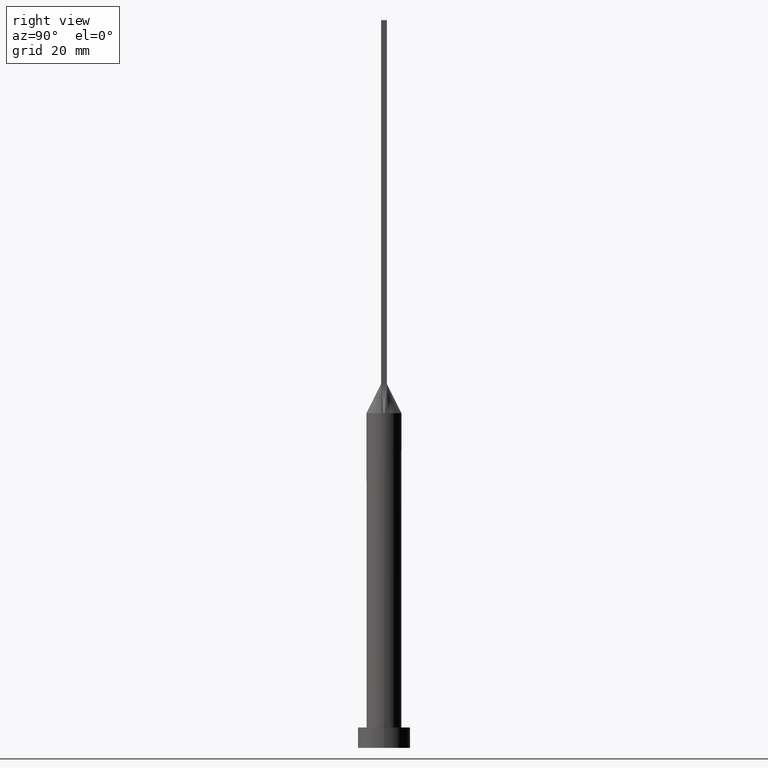
[diagram: clean part render]
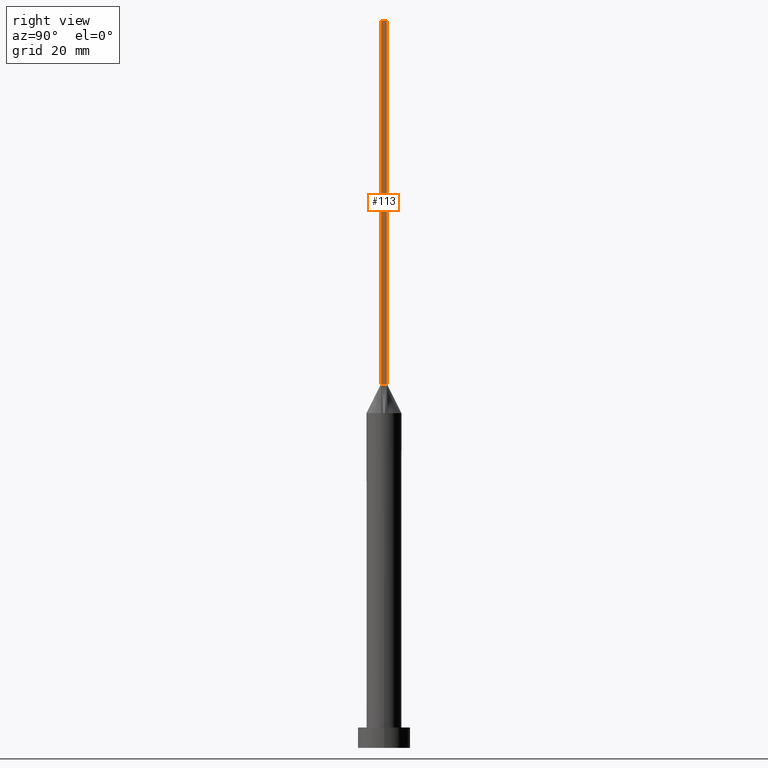
[diagram: same view with one face highlighted and labeled with its STEP entity id]
A machine part, right view. The second image highlights one B-rep face of the part: STEP entity #113.
In plain terms, the highlighted planar face has unit normal (-1, 0, 0).
Its self-contained STEP definition (entity closure, byte-faithful):
#76 = EDGE_CURVE ( 'NONE', #414, #205, #489, .T. ) ;
#83 = CARTESIAN_POINT ( 'NONE',  ( 5.750000000000000000, -0.9999999999999997780, 250.0000000000000000 ) ) ;
#108 = CARTESIAN_POINT ( 'NONE',  ( 5.750000000000000000, -0.9999999999999997780, 125.0000000000000000 ) ) ;
#113 = ADVANCED_FACE ( 'NONE', ( #528 ), #614, .F. ) ;
#135 = DIRECTION ( 'NONE',  ( 0.000000000000000000, 0.000000000000000000, 1.000000000000000000 ) ) ;
#145 = EDGE_CURVE ( 'NONE', #205, #271, #238, .T. ) ;
#185 = VECTOR ( 'NONE', #207, 1000.000000000000000 ) ;
#197 = VECTOR ( 'NONE', #464, 1000.000000000000000 ) ;
#205 = VERTEX_POINT ( 'NONE', #108 ) ;
#207 = DIRECTION ( 'NONE',  ( -0.000000000000000000, -0.000000000000000000, -1.000000000000000000 ) ) ;
#226 = AXIS2_PLACEMENT_3D ( 'NONE', #403, #598, #135 ) ;
#228 = ORIENTED_EDGE ( 'NONE', *, *, #76, .T. ) ;
#238 = LINE ( 'NONE', #605, #197 ) ;
#248 = LINE ( 'NONE', #436, #185 ) ;
#260 = DIRECTION ( 'NONE',  ( -0.000000000000000000, -0.000000000000000000, -1.000000000000000000 ) ) ;
#271 = VERTEX_POINT ( 'NONE', #481 ) ;
#291 = VERTEX_POINT ( 'NONE', #431 ) ;
#311 = CARTESIAN_POINT ( 'NONE',  ( 5.750000000000000000, -0.9999999999999997780, 250.0000000000000000 ) ) ;
#314 = VECTOR ( 'NONE', #260, 1000.000000000000000 ) ;
#315 = EDGE_CURVE ( 'NONE', #291, #271, #248, .T. ) ;
#339 = CARTESIAN_POINT ( 'NONE',  ( 5.750000000000000000, -0.9999999999999997780, 250.0000000000000000 ) ) ;
#365 = VECTOR ( 'NONE', #466, 1000.000000000000000 ) ;
#403 = CARTESIAN_POINT ( 'NONE',  ( 5.750000000000000000, -0.9999999999999997780, 250.0000000000000000 ) ) ;
#414 = VERTEX_POINT ( 'NONE', #311 ) ;
#431 = CARTESIAN_POINT ( 'NONE',  ( 5.750000000000000000, 1.000000000000000000, 250.0000000000000000 ) ) ;
#436 = CARTESIAN_POINT ( 'NONE',  ( 5.750000000000000000, 1.000000000000000000, 250.0000000000000000 ) ) ;
#464 = DIRECTION ( 'NONE',  ( -0.000000000000000000, 1.000000000000000000, -0.000000000000000000 ) ) ;
#466 = DIRECTION ( 'NONE',  ( 0.000000000000000000, 1.000000000000000000, 0.000000000000000000 ) ) ;
#481 = CARTESIAN_POINT ( 'NONE',  ( 5.750000000000000000, 1.000000000000000000, 125.0000000000000000 ) ) ;
#489 = LINE ( 'NONE', #339, #314 ) ;
#493 = EDGE_CURVE ( 'NONE', #414, #291, #506, .T. ) ;
#506 = LINE ( 'NONE', #83, #365 ) ;
#528 = FACE_OUTER_BOUND ( 'NONE', #611, .T. ) ;
#541 = ORIENTED_EDGE ( 'NONE', *, *, #315, .F. ) ;
#548 = ORIENTED_EDGE ( 'NONE', *, *, #493, .F. ) ;
#598 = DIRECTION ( 'NONE',  ( -1.000000000000000000, 0.000000000000000000, 0.000000000000000000 ) ) ;
#605 = CARTESIAN_POINT ( 'NONE',  ( 5.750000000000000000, 1.000000000000000000, 125.0000000000000000 ) ) ;
#611 = EDGE_LOOP ( 'NONE', ( #616, #541, #548, #228 ) ) ;
#614 = PLANE ( 'NONE',  #226 ) ;
#616 = ORIENTED_EDGE ( 'NONE', *, *, #145, .T. ) ;